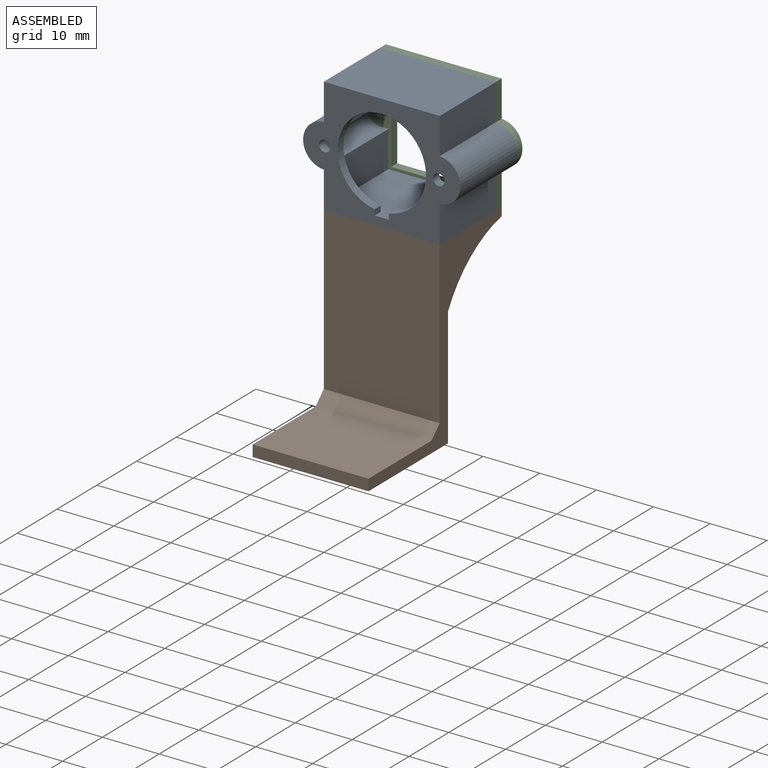
[diagram: assembled view]
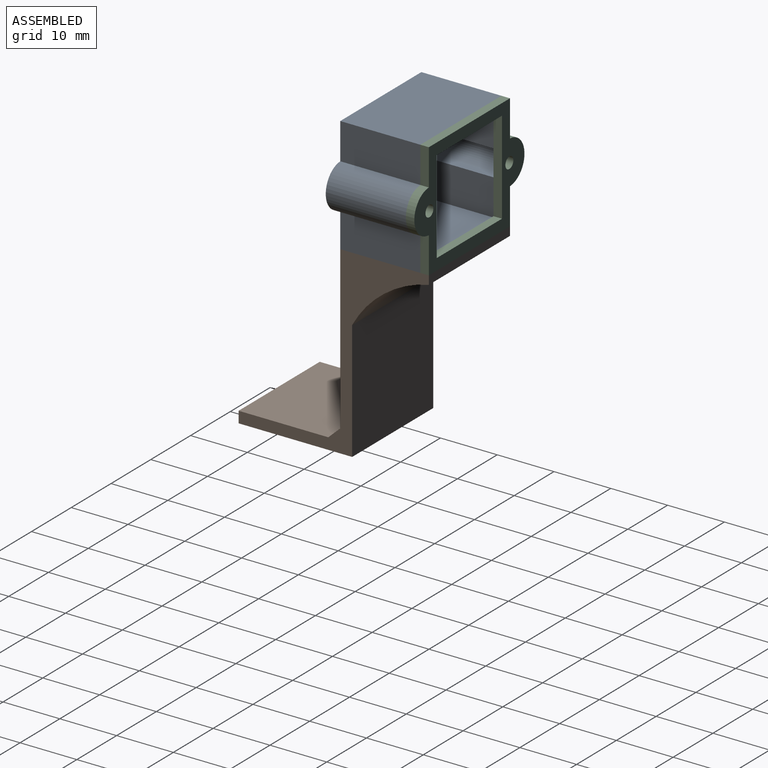
[diagram: assembled view, second angle]
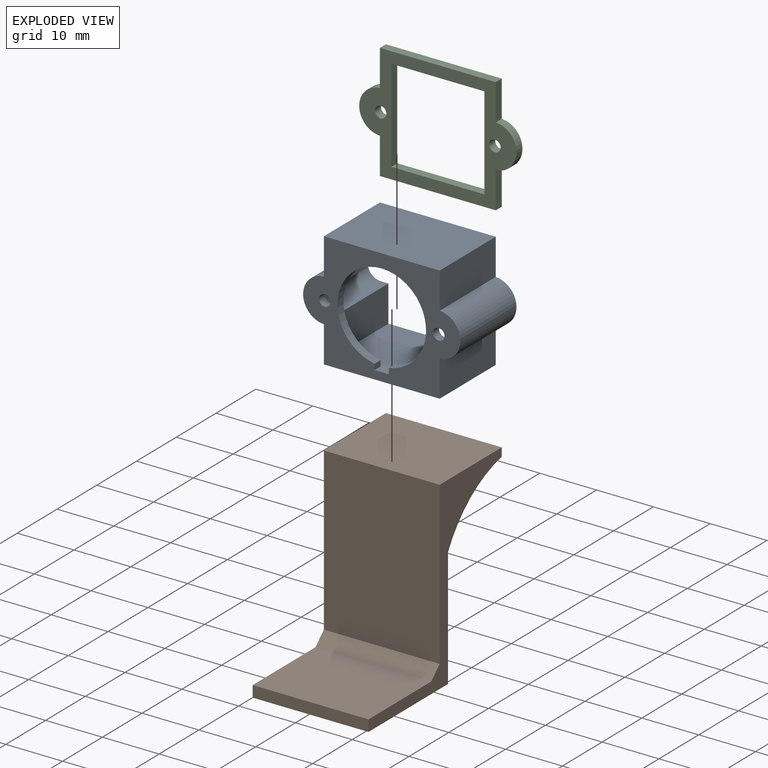
[diagram: exploded view]
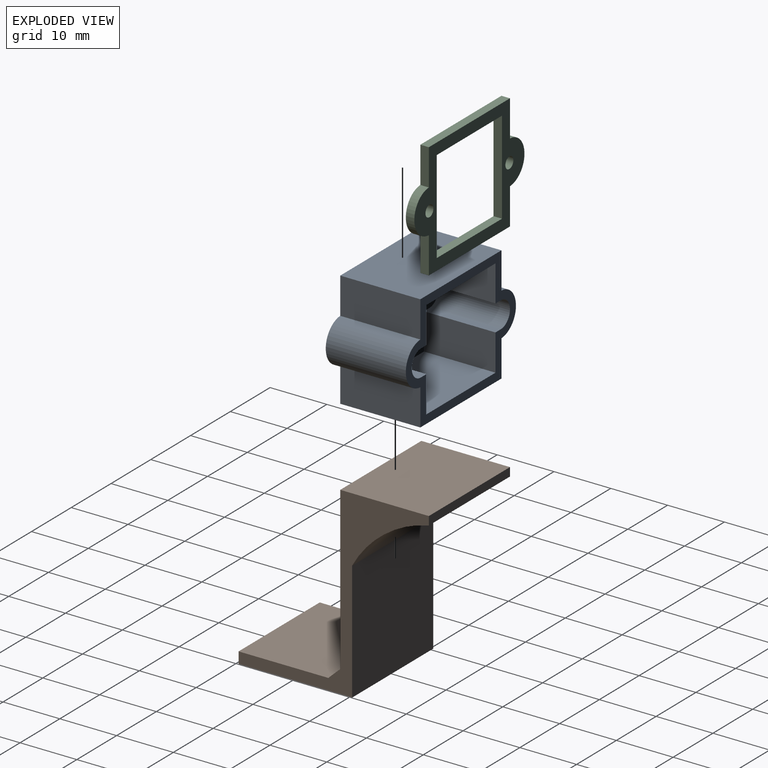
[diagram: exploded view, second angle]
ASSEMBLY  parts=3 mates=2
PART A: 28 faces, bbox 27.7x14.1x20.4 mm
  f0: cylinder r=7.8mm len=15.6mm, axis (0,1,0), area 69.7mm2, adj f1,f23,f26,f27
  f1: plane 27.7x20.4mm, normal (0,-1,0), area 259.5mm2, adj f0,f7,f13,f14,f15,f16,f17,f18
  f2: plane 12.6x6.4mm, normal (-1,0,0), area 80.6mm2, adj f3,f21,f22,f23
  f3: plane 12.6x1.35mm, normal (0,0,-1), area 17mm2, adj f2,f4,f22,f23
  f4: cylinder r=2.3mm len=12.6mm, axis (0,-1,0), area 91mm2, adj f3,f5,f22,f23
  f5: plane 12.6x1.35mm, normal (0,0,1), area 17mm2, adj f4,f6,f22,f23
  f6: plane 12.6x6.4mm, normal (-1,0,0), area 80.6mm2, adj f5,f7,f22,f23
  f7: plane 17.4x14.1mm, normal (0,0,1), area 223mm2, adj f1,f6,f8,f22,f23,f26,f27
  f8: plane 12.6x6.4mm, normal (1,0,0), area 80.6mm2, adj f7,f9,f22,f23
  f9: plane 12.6x1.35mm, normal (0,0,1), area 17mm2, adj f8,f10,f22,f23
  f10: cylinder r=2.3mm len=12.6mm, axis (0,-1,0), area 91mm2, adj f9,f11,f22,f23
  f11: plane 12.6x1.35mm, normal (0,0,-1), area 17mm2, adj f10,f12,f22,f23
  f12: plane 12.6x6.4mm, normal (1,0,0), area 80.6mm2, adj f11,f21,f22,f23
  f13: plane 20.4x14.1mm, normal (0,0,-1), area 287.6mm2, adj f1,f14,f20,f22
  f14: plane 14.1x6.4mm, normal (1,0,0), area 90.3mm2, adj f1,f13,f15,f22
  f15: cylinder r=3.8mm len=14.1mm, axis (0,-1,0), area 164.1mm2, adj f1,f14,f16,f22
  f16: plane 14.1x6.4mm, normal (1,0,0), area 90.3mm2, adj f1,f15,f17,f22
  f17: plane 20.4x14.1mm, normal (0,0,1), area 287.6mm2, adj f1,f16,f18,f22
  f18: plane 14.1x6.4mm, normal (-1,0,0), area 90.3mm2, adj f1,f17,f19,f22
  f19: cylinder r=3.8mm len=14.1mm, axis (0,-1,0), area 164.1mm2, adj f1,f18,f20,f22
  f20: plane 14.1x6.4mm, normal (-1,0,0), area 90.3mm2, adj f1,f13,f19,f22
  f21: plane 17.4x12.6mm, normal (0,0,-1), area 219.2mm2, adj f2,f12,f22,f23
  f22: plane 27.7x20.4mm, normal (0,1,0), area 127.4mm2, adj f2,f3,f4,f5,f6,f7,f8,f9
  f23: plane 24.7x17.4mm, normal (0,1,0), area 132mm2, adj f0,f2,f3,f4,f5,f6,f7,f8
  f24: cylinder r=1mm len=2mm, axis (0,1,0), area 9.4mm2, adj f1,f23
  f25: cylinder r=1mm len=2mm, axis (0,1,0), area 9.4mm2, adj f1,f23
  f26: plane 1.5x1mm, normal (1,0,0), area 1.5mm2, adj f0,f1,f7,f23
  f27: plane 1.5x1mm, normal (-1,0,0), area 1.5mm2, adj f0,f1,f7,f23
PART B: 11 faces, bbox 20.4x33.5x32.5 mm
  f0: plane 28.5x20.4mm, normal (0,-1,0), area 581.4mm2, adj f2,f3,f4,f7
  f1: plane 20.4x1.5mm, normal (0,1,0), area 30.6mm2, adj f2,f3,f4,f5
  f2: plane 33.5x32.5mm, normal (-1,0,0), area 173mm2, adj f0,f1,f4,f5,f6,f7,f8,f9
  f3: plane 33.5x32.5mm, normal (1,0,0), area 173mm2, adj f0,f1,f4,f5,f6,f7,f8,f9
  f4: plane 20.4x15.6mm, normal (0,0,1), area 318.2mm2, adj f0,f1,f2,f3
  f5: cylinder r=20mm len=20.4mm, axis (-1,0,0), area 353.7mm2, adj f1,f2,f3,f6
  f6: plane 21x20.4mm, normal (0,1,0), area 428.4mm2, adj f2,f3,f5,f10
  f7: plane 20.4x2.1mm, normal (0,-0.69,0.72), area 59.2mm2, adj f0,f2,f3,f8
  f8: plane 20.4x15.8mm, normal (0,0,1), area 322.3mm2, adj f2,f3,f7,f9
  f9: plane 20.4x2mm, normal (0,-1,0), area 40.8mm2, adj f2,f3,f8,f10
  f10: plane 20.4x20mm, normal (0,0,-1), area 408mm2, adj f2,f3,f6,f9
PART C: 16 faces, bbox 27.7x1.5x20.4 mm
  f0: plane 6.4x1.5mm, normal (1,0,0), area 9.6mm2, adj f1,f13,f14,f15
  f1: plane 20.4x1.5mm, normal (0,0,-1), area 30.6mm2, adj f0,f2,f14,f15
  f2: plane 6.4x1.5mm, normal (-1,0,0), area 9.6mm2, adj f1,f3,f14,f15
  f3: cylinder r=3.8mm len=7.59mm, axis (0,-1,0), area 17.5mm2, adj f2,f4,f14,f15
  f4: plane 6.4x1.5mm, normal (-1,0,0), area 9.6mm2, adj f3,f5,f14,f15
  f5: plane 20.4x1.5mm, normal (0,0,1), area 30.6mm2, adj f4,f6,f14,f15
  f6: plane 6.4x1.5mm, normal (1,0,0), area 9.6mm2, adj f5,f13,f14,f15
  f7: plane 16.4x1.5mm, normal (0,0,-1), area 24.6mm2, adj f8,f10,f14,f15
  f8: plane 16.4x1.5mm, normal (1,0,0), area 24.6mm2, adj f7,f9,f14,f15
  f9: plane 16.4x1.5mm, normal (0,0,1), area 24.6mm2, adj f8,f10,f14,f15
  f10: plane 16.4x1.5mm, normal (-1,0,0), area 24.6mm2, adj f7,f9,f14,f15
  f11: cylinder r=1mm len=2mm, axis (0,-1,0), area 9.4mm2, adj f14,f15
  f12: cylinder r=1mm len=2mm, axis (0,-1,0), area 9.4mm2, adj f14,f15
  f13: cylinder r=3.8mm len=7.59mm, axis (0,-1,0), area 17.5mm2, adj f0,f6,f14,f15
  f14: plane 27.7x20.4mm, normal (0,1,0), area 184mm2, adj f0,f1,f2,f3,f4,f5,f6,f7
  f15: plane 27.7x20.4mm, normal (0,-1,0), area 184mm2, adj f0,f1,f2,f3,f4,f5,f6,f7
PLACE A t=(-8.51,-8.93,-1.6)mm
PLACE B t=(-8.51,-2.63,-12.55)mm
PLACE C t=(-8.51,-8.93,-1.6)mm
MATE fastened B.f4 <-> A.f13  axis (0,0,-1) through (1.69,-10.43,-11.8)mm
MATE fastened C.f15 <-> A.f22  axis (0,-1,0) through (1.69,3.67,8.6)mm
